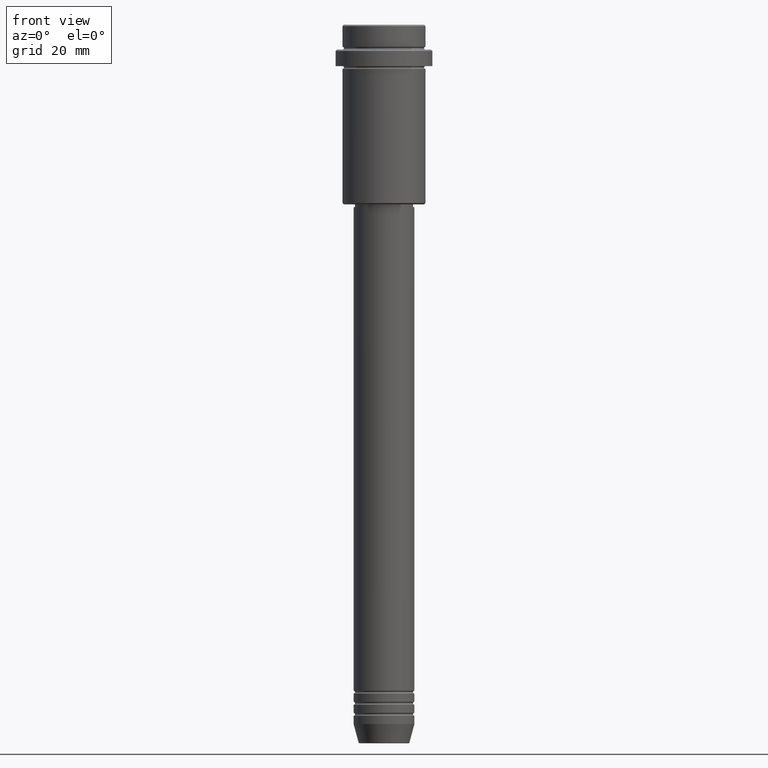
[diagram: clean part render]
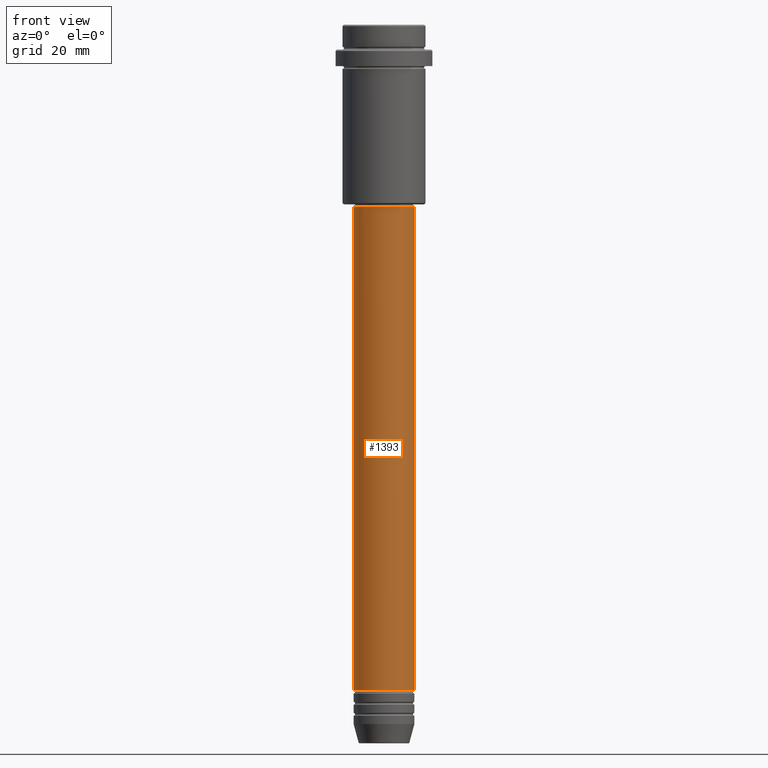
[diagram: same view with one face highlighted and labeled with its STEP entity id]
A machine part, front view. The second image highlights one B-rep face of the part: STEP entity #1393.
In plain terms, the highlighted cylindrical surface (edge-blend (fillet) strip) has radius 11 mm, axis along (-0, -0, 1).
Its self-contained STEP definition (entity closure, byte-faithful):
#8 = FACE_OUTER_BOUND ( 'NONE', #1259, .T. ) ;
#40 = AXIS2_PLACEMENT_3D ( 'NONE', #247, #342, #452 ) ;
#150 = DIRECTION ( 'NONE',  ( -0.000000000000000000, -0.000000000000000000, 1.000000000000000000 ) ) ;
#153 = ORIENTED_EDGE ( 'NONE', *, *, #646, .T. ) ;
#168 = EDGE_CURVE ( 'NONE', #741, #1195, #595, .T. ) ;
#211 = AXIS2_PLACEMENT_3D ( 'NONE', #255, #150, #1015 ) ;
#218 = ORIENTED_EDGE ( 'NONE', *, *, #168, .F. ) ;
#247 = CARTESIAN_POINT ( 'NONE',  ( 0.000000000000000000, 0.000000000000000000, -240.9999999999999147 ) ) ;
#255 = CARTESIAN_POINT ( 'NONE',  ( 0.000000000000000000, 0.000000000000000000, -66.00000000000000000 ) ) ;
#256 = DIRECTION ( 'NONE',  ( -0.000000000000000000, -0.000000000000000000, 1.000000000000000000 ) ) ;
#295 = CARTESIAN_POINT ( 'NONE',  ( 10.99999999999999822, 0.000000000000000000, -66.00000000000000000 ) ) ;
#342 = DIRECTION ( 'NONE',  ( -0.000000000000000000, -0.000000000000000000, 1.000000000000000000 ) ) ;
#352 = CARTESIAN_POINT ( 'NONE',  ( 11.00000000000000000, 0.000000000000000000, 0.000000000000000000 ) ) ;
#362 = CARTESIAN_POINT ( 'NONE',  ( -11.00000000000000000, 1.347111479062088405E-15, 0.000000000000000000 ) ) ;
#378 = DIRECTION ( 'NONE',  ( -0.000000000000000000, -0.000000000000000000, 1.000000000000000000 ) ) ;
#444 = ORIENTED_EDGE ( 'NONE', *, *, #554, .F. ) ;
#447 = LINE ( 'NONE', #352, #1149 ) ;
#452 = DIRECTION ( 'NONE',  ( 1.000000000000000000, 0.000000000000000000, 0.000000000000000000 ) ) ;
#473 = VECTOR ( 'NONE', #1144, 1000.000000000000000 ) ;
#486 = CARTESIAN_POINT ( 'NONE',  ( -10.99999999999999822, 1.347111479062088207E-15, -66.00000000000000000 ) ) ;
#496 = CARTESIAN_POINT ( 'NONE',  ( -11.00000000000000000, 1.347111479062088405E-15, -240.9999999999999147 ) ) ;
#554 = EDGE_CURVE ( 'NONE', #1405, #741, #1346, .T. ) ;
#595 = CIRCLE ( 'NONE', #211, 10.99999999999999822 ) ;
#646 = EDGE_CURVE ( 'NONE', #1405, #674, #1090, .T. ) ;
#674 = VERTEX_POINT ( 'NONE', #1038 ) ;
#719 = CARTESIAN_POINT ( 'NONE',  ( 0.000000000000000000, 0.000000000000000000, 0.000000000000000000 ) ) ;
#741 = VERTEX_POINT ( 'NONE', #486 ) ;
#801 = DIRECTION ( 'NONE',  ( 1.000000000000000000, 0.000000000000000000, 0.000000000000000000 ) ) ;
#864 = EDGE_CURVE ( 'NONE', #674, #1195, #447, .T. ) ;
#895 = ORIENTED_EDGE ( 'NONE', *, *, #864, .T. ) ;
#1015 = DIRECTION ( 'NONE',  ( 1.000000000000000000, 0.000000000000000000, 0.000000000000000000 ) ) ;
#1038 = CARTESIAN_POINT ( 'NONE',  ( 11.00000000000000000, 0.000000000000000000, -240.9999999999999147 ) ) ;
#1090 = CIRCLE ( 'NONE', #40, 11.00000000000000000 ) ;
#1129 = AXIS2_PLACEMENT_3D ( 'NONE', #719, #378, #801 ) ;
#1144 = DIRECTION ( 'NONE',  ( -0.000000000000000000, -0.000000000000000000, 1.000000000000000000 ) ) ;
#1149 = VECTOR ( 'NONE', #256, 1000.000000000000000 ) ;
#1195 = VERTEX_POINT ( 'NONE', #295 ) ;
#1254 = CYLINDRICAL_SURFACE ( 'NONE', #1129, 11.00000000000000000 ) ;
#1259 = EDGE_LOOP ( 'NONE', ( #444, #153, #895, #218 ) ) ;
#1346 = LINE ( 'NONE', #362, #473 ) ;
#1393 = ADVANCED_FACE ( 'NONE', ( #8 ), #1254, .T. ) ;
#1405 = VERTEX_POINT ( 'NONE', #496 ) ;